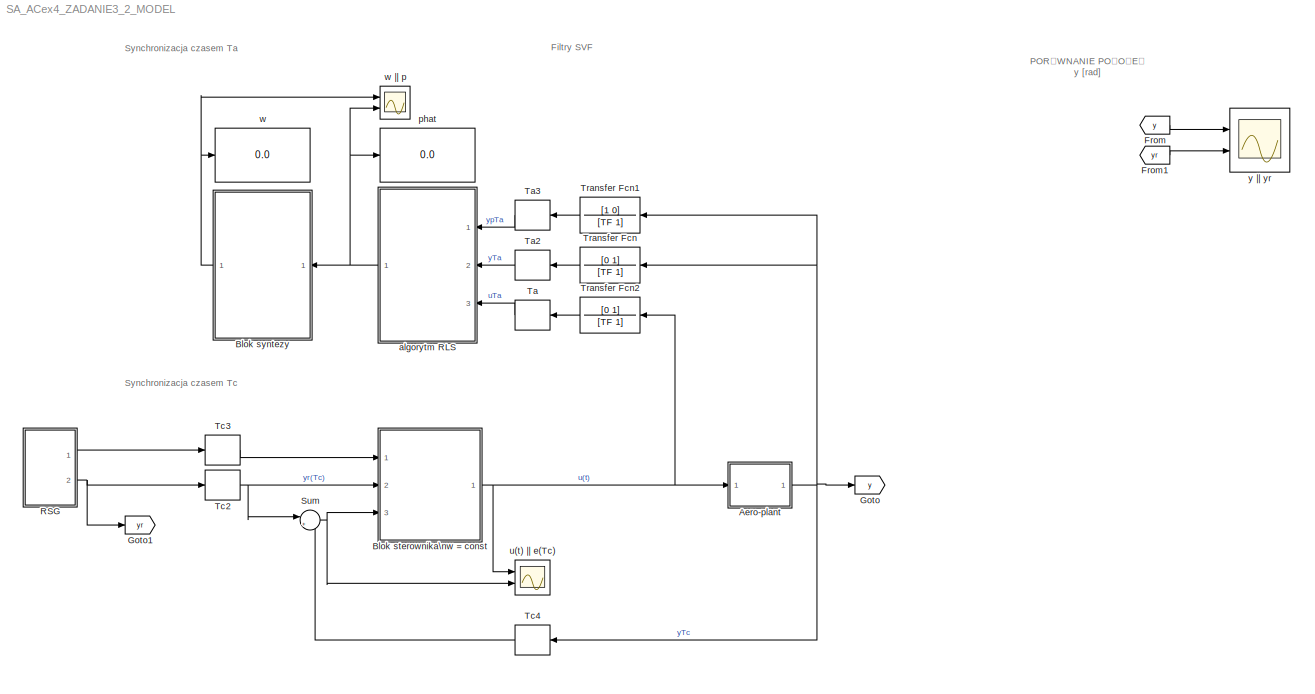
MODEL SA_ACex4_ZADANIE3_2_MODEL
KIND model
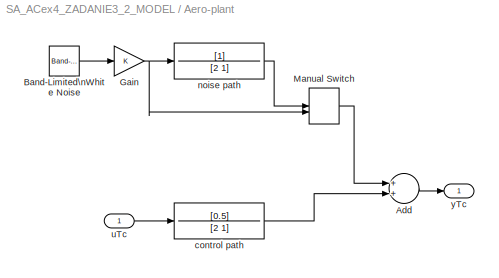
BLOCK [SubSystem] Aero-plant
  Ports = [1, 1]
  RequestExecContextInheritance = off
  SID = 2
BLOCK [Sum] Aero-plant/Add
  InputSameDT = off
  OutDataTypeStr = Inherit: Inherit via internal rule
  Ports = [2, 1]
  SID = 4
  SaturateOnIntegerOverflow = off
BLOCK [Reference] Aero-plant/Band-Limited\nWhite Noise  REF=simulink/Sources/Band-Limited\nWhite Noise
  Cov = [sigma2e*Tc]
  Ports = [0, 1]
  SID = 5
  SourceBlock = simulink/Sources/Band-Limited\nWhite Noise
  SourceProductBaseCode = SL
  SourceProductName = Simulink
  SourceType = Band-Limited White Noise.
  Ts = Tc
  VectorParams1D = on
  seed = [23341]
BLOCK [Gain] Aero-plant/Gain
  OutDataTypeStr = Inherit: Inherit via internal rule
  ParamDataTypeStr = Inherit: Inherit via internal rule
  SID = 6
  SaturateOnIntegerOverflow = off
BLOCK [ManualSwitch] Aero-plant/Manual Switch
  SID = 7
BLOCK [TransferFcn] Aero-plant/control path
  Denominator = [2 1]
  Numerator = [0.5]
  SID = 8
BLOCK [TransferFcn] Aero-plant/noise path
  Denominator = [2 1]
  SID = 9
BLOCK [Inport] Aero-plant/uTc
  IconDisplay = Port number
  SID = 3
BLOCK [Outport] Aero-plant/yTc
  IconDisplay = Port number
  SID = 10
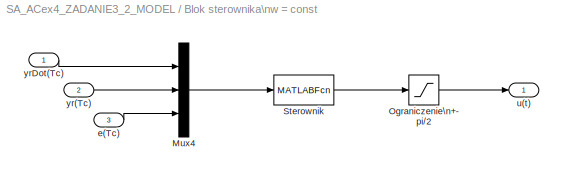
BLOCK [SubSystem] Blok sterownika\nw = const
  Ports = [3, 1]
  RequestExecContextInheritance = off
  SID = 85
BLOCK [Mux] Blok sterownika\nw = const/Mux4
  DisplayOption = bar
  Inputs = 3
  Ports = [3, 1]
  SID = 89
BLOCK [Saturate] Blok sterownika\nw = const/Ograniczenie\n+- pi//2
  InputPortMap = u0
  LowerLimit = -pi/2
  Ports = [1, 1]
  SID = 90
  UpperLimit = pi/2
BLOCK [MATLABFcn] Blok sterownika\nw = const/Sterownik
  MATLABFcn = SA_ACex4_ZADANIE3_2_STEROWNIK
  OutputDimensions = 1
  Ports = [1, 1]
  SID = 91
BLOCK [Inport] Blok sterownika\nw = const/e(Tc)
  IconDisplay = Port number
  Port = 3
  SID = 88
BLOCK [Outport] Blok sterownika\nw = const/u(t)
  IconDisplay = Port number
  SID = 92
BLOCK [Inport] Blok sterownika\nw = const/yr(Tc)
  IconDisplay = Port number
  Port = 2
  SID = 87
BLOCK [Inport] Blok sterownika\nw = const/yrDot(Tc)
  IconDisplay = Port number
  SID = 86
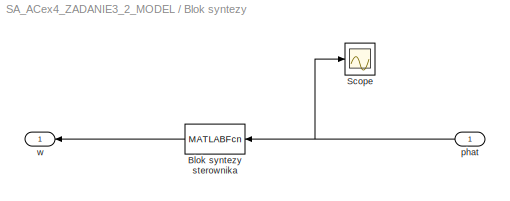
BLOCK [SubSystem] Blok syntezy
  Ports = [1, 1]
  RequestExecContextInheritance = off
  SID = 53
BLOCK [MATLABFcn] Blok syntezy/Blok syntezy sterownika
  MATLABFcn = SA_ACex4_SYNTEZA
  Ports = [1, 1]
  SID = 1
BLOCK [Scope] Blok syntezy/Scope
  Floating = off
  NumInputPorts = 1
  Ports = [1]
  SID = 57
  ScopeSpecificationString = Simulink.scopes.TimeScopeBlockCfg('CurrentConfiguration', extmgr.ConfigurationSet(extmgr.Configuration('Core','General UI',true),extmgr.Configuration('Core','Source UI',true),extmgr.Configuration('Sources','WiredSimulink',true,'DataLoggingVariableName','ScopeData1'),extmgr.Configuration('Visuals','Time Domain',true),extmgr.Configuration('Tools','Plot Navigation',true),extmgr.Configuration('Tools',...<+40ch>
BLOCK [Inport] Blok syntezy/phat
  IconDisplay = Port number
  SID = 54
BLOCK [Outport] Blok syntezy/w
  IconDisplay = Port number
  SID = 56
BLOCK [From] From
  GotoTag = y
  SID = 100
BLOCK [From] From1
  GotoTag = yr
  SID = 101
BLOCK [Goto] Goto
  GotoTag = y
  SID = 104
BLOCK [Goto] Goto1
  GotoTag = yr
  SID = 93
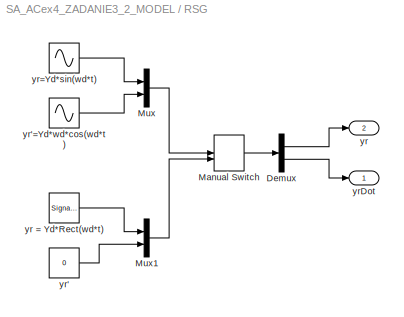
BLOCK [SubSystem] RSG
  Ports = [0, 2]
  RequestExecContextInheritance = off
  SID = 17
BLOCK [Demux] RSG/Demux
  DisplayOption = bar
  Outputs = 2
  Ports = [1, 2]
  SID = 18
BLOCK [ManualSwitch] RSG/Manual Switch
  SID = 19
BLOCK [Mux] RSG/Mux
  DisplayOption = bar
  Inputs = 2
  Ports = [2, 1]
  SID = 20
BLOCK [Mux] RSG/Mux1
  DisplayOption = bar
  Inputs = 2
  Ports = [2, 1]
  SID = 21
BLOCK [Outport] RSG/yr
  IconDisplay = Port number
  Port = 2
  SID = 26
BLOCK [SignalGenerator] RSG/yr = Yd*Rect(wd*t)
  Amplitude = Yr
  Frequency = omega_r
  Ports = [0, 1]
  SID = 22
  Units = rad/sec
  WaveForm = square
BLOCK [Constant] RSG/yr'
  SID = 23
  Value = 0
BLOCK [Sin] RSG/yr'=Yd*wd*cos(wd*t)
  Amplitude = Yr*omega_r
  Frequency = omega_r
  Phase = pi/2
  Ports = [0, 1]
  SID = 24
  SampleTime = 0
BLOCK [Sin] RSG/yr=Yd*sin(wd*t)
  Amplitude = Yr
  Frequency = omega_r
  Ports = [0, 1]
  SID = 25
  SampleTime = 0
BLOCK [Outport] RSG/yrDot
  IconDisplay = Port number
  SID = 27
BLOCK [Sum] Sum
  IconShape = round
  InputSameDT = off
  Inputs = |+-
  OutDataTypeStr = Inherit: Inherit via internal rule
  Ports = [2, 1]
  SID = 94
  SaturateOnIntegerOverflow = off
BLOCK [ZeroOrderHold] Ta
  SID = 37
  SampleTime = Ta
BLOCK [ZeroOrderHold] Ta2
  SID = 38
  SampleTime = Ta
BLOCK [ZeroOrderHold] Ta3
  SID = 39
  SampleTime = Ta
BLOCK [ZeroOrderHold] Tc2
  SID = 95
  SampleTime = Tc
BLOCK [ZeroOrderHold] Tc3
  SID = 96
  SampleTime = Tc
BLOCK [ZeroOrderHold] Tc4
  SID = 97
  SampleTime = Tc
BLOCK [TransferFcn] Transfer Fcn
  Denominator = [TF 1]
  Numerator = [0 1]
  SID = 34
BLOCK [TransferFcn] Transfer Fcn1
  Denominator = [TF 1]
  Numerator = [1 0]
  SID = 35
BLOCK [TransferFcn] Transfer Fcn2
  Denominator = [TF 1]
  Numerator = [0 1]
  SID = 36
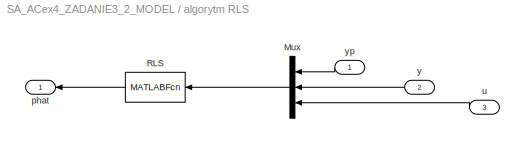
BLOCK [SubSystem] algorytm RLS
  Ports = [3, 1]
  RequestExecContextInheritance = off
  SID = 48
BLOCK [Mux] algorytm RLS/Mux
  DisplayOption = bar
  Inputs = 3
  Ports = [3, 1]
  SID = 12
BLOCK [MATLABFcn] algorytm RLS/RLS
  MATLABFcn = SA_ACex4_RLS
  OutputDimensions = 2
  Ports = [1, 1]
  SID = 16
BLOCK [Outport] algorytm RLS/phat
  IconDisplay = Port number
  SID = 52
BLOCK [Inport] algorytm RLS/u
  IconDisplay = Port number
  Port = 3
  SID = 51
BLOCK [Inport] algorytm RLS/y
  IconDisplay = Port number
  Port = 2
  SID = 50
BLOCK [Inport] algorytm RLS/yp
  IconDisplay = Port number
  SID = 49
BLOCK [Display] phat
  Decimation = 1
  Ports = [1]
  SID = 66
BLOCK [Scope] u(t) || e(Tc)
  Floating = off
  NumInputPorts = 2
  Ports = [2]
  SID = 98
  ScopeSpecificationString = Simulink.scopes.TimeScopeBlockCfg('CurrentConfiguration', extmgr.ConfigurationSet(extmgr.Configuration('Core','General UI',true,'FigureColor',[1 1 1]),extmgr.Configuration('Core','Source UI',true),extmgr.Configuration('Sources','WiredSimulink',true,'DataLogging',true,'DataLoggingVariableName','ScopeData1','DataLoggingSaveFormat','StructureWithTime','DataLoggingDecimation','1','DataLoggingDecimateD...<+2980ch>
BLOCK [Display] w
  Decimation = 1
  Ports = [1]
  SID = 78
BLOCK [Scope] w || p
  Floating = off
  NumInputPorts = 2
  Ports = [2]
  SID = 82
  ScopeSpecificationString = Simulink.scopes.TimeScopeBlockCfg('CurrentConfiguration', extmgr.ConfigurationSet(extmgr.Configuration('Core','General UI',true,'FigureColor',[1 1 1]),extmgr.Configuration('Core','Source UI',true),extmgr.Configuration('Sources','WiredSimulink',true,'DataLogging',true,'DataLoggingVariableName','ScopeData2','DataLoggingSaveFormat','StructureWithTime','DataLoggingDecimation','1','DataLoggingDecimateD...<+3226ch>
BLOCK [Scope] y || yr
  Floating = off
  NumInputPorts = 2
  Ports = [2]
  SID = 102
  ScopeSpecificationString = Simulink.scopes.TimeScopeBlockCfg('CurrentConfiguration', extmgr.ConfigurationSet(extmgr.Configuration('Core','General UI',true,'FigureColor',[1 1 1]),extmgr.Configuration('Core','Source UI',true),extmgr.Configuration('Sources','WiredSimulink',true,'DataLoggingVariableName','ScopeData2'),extmgr.Configuration('Visuals','Time Domain',true,'SerializedDisplays',{struct('MinYLimReal','-0.1875','MaxYLim...<+1808ch>
ANNOTATION (root): Synchronizacja czasem Tc
ANNOTATION (root): Filtry SVF
ANNOTATION (root): PORÓWNANIE PO£O¯EÑ\ny [rad]
ANNOTATION (root): Synchronizacja czasem Ta
LINE Aero-plant/Add:1 -> Aero-plant/yTc:1
LINE Aero-plant/Band-Limited\nWhite Noise:1 -> Aero-plant/Gain:1
NET Aero-plant/Gain:1 -> Aero-plant/Manual Switch:2, Aero-plant/noise path:1
LINE Aero-plant/Manual Switch:1 -> Aero-plant/Add:1
LINE Aero-plant/control path:1 -> Aero-plant/Add:2
LINE Aero-plant/noise path:1 -> Aero-plant/Manual Switch:1
LINE Aero-plant/uTc:1 -> Aero-plant/control path:1
NET Aero-plant:1 -> Goto:1, Tc4:1, Transfer Fcn1:1, Transfer Fcn:1
LINE Blok sterownika\nw = const/Mux4:1 -> Blok sterownika\nw = const/Sterownik:1
LINE Blok sterownika\nw = const/Ograniczenie\n+- pi//2:1 -> Blok sterownika\nw = const/u(t):1
LINE Blok sterownika\nw = const/Sterownik:1 -> Blok sterownika\nw = const/Ograniczenie\n+- pi//2:1
LINE Blok sterownika\nw = const/e(Tc):1 -> Blok sterownika\nw = const/Mux4:3
LINE Blok sterownika\nw = const/yr(Tc):1 -> Blok sterownika\nw = const/Mux4:2
LINE Blok sterownika\nw = const/yrDot(Tc):1 -> Blok sterownika\nw = const/Mux4:1
NET Blok sterownika\nw = const:1 -> Aero-plant:1, Transfer Fcn2:1, u(t) || e(Tc):1
LINE Blok syntezy/Blok syntezy sterownika:1 -> Blok syntezy/w:1
NET Blok syntezy/phat:1 -> Blok syntezy/Blok syntezy sterownika:1, Blok syntezy/Scope:1
NET Blok syntezy:1 -> w || p:1, w:1
LINE From1:1 -> y || yr:2
LINE From:1 -> y || yr:1
LINE RSG/Demux:1 -> RSG/yr:1
LINE RSG/Demux:2 -> RSG/yrDot:1
LINE RSG/Manual Switch:1 -> RSG/Demux:1
LINE RSG/Mux1:1 -> RSG/Manual Switch:2
LINE RSG/Mux:1 -> RSG/Manual Switch:1
LINE RSG/yr = Yd*Rect(wd*t):1 -> RSG/Mux1:1
LINE RSG/yr':1 -> RSG/Mux1:2
LINE RSG/yr'=Yd*wd*cos(wd*t):1 -> RSG/Mux:2
LINE RSG/yr=Yd*sin(wd*t):1 -> RSG/Mux:1
LINE RSG:1 -> Tc3:1
NET RSG:2 -> Goto1:1, Tc2:1
NET Sum:1 -> Blok sterownika\nw = const:3, u(t) || e(Tc):2
LINE Ta2:1 -> algorytm RLS:2
LINE Ta3:1 -> algorytm RLS:1
LINE Ta:1 -> algorytm RLS:3
NET Tc2:1 -> Blok sterownika\nw = const:2, Sum:1
LINE Tc3:1 -> Blok sterownika\nw = const:1
LINE Tc4:1 -> Sum:2
LINE Transfer Fcn1:1 -> Ta3:1
LINE Transfer Fcn2:1 -> Ta:1
LINE Transfer Fcn:1 -> Ta2:1
LINE algorytm RLS/Mux:1 -> algorytm RLS/RLS:1
LINE algorytm RLS/RLS:1 -> algorytm RLS/phat:1
LINE algorytm RLS/u:1 -> algorytm RLS/Mux:3
LINE algorytm RLS/y:1 -> algorytm RLS/Mux:2
LINE algorytm RLS/yp:1 -> algorytm RLS/Mux:1
NET algorytm RLS:1 -> Blok syntezy:1, phat:1, w || p:2
note: NET lines group one-source signal fan-out (src -> all destinations, sorted); 1:1 wires keep LINE
